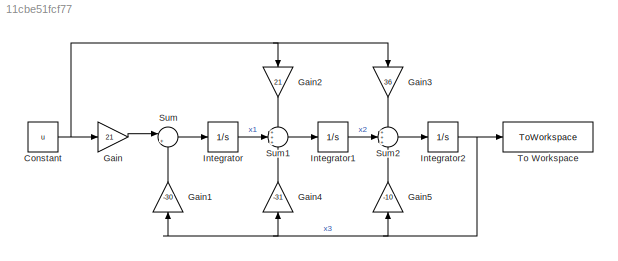
MODEL slx_11cbe51fcf77
KIND model
CONFIG AbsTol = auto
CONFIG EnableMultiTasking = off
CONFIG FixedStep = auto
CONFIG MaxStep = auto
CONFIG MinStep = auto
CONFIG RelTol = 1e-3
CONFIG SampleTimeConstraint = Unconstrained
CONFIG SolverName = VariableStepAuto
CONFIG StartTime = 0.0
CONFIG StopTime = 10.0
BLOCK [Constant] Constant
  SampleTime = 0.0001
  Value = u
BLOCK [Gain] Gain
  Gain = 21
BLOCK [Gain] Gain1
  Gain = -30
  NameLocation = right
BLOCK [Gain] Gain2
  Gain = 21
  NameLocation = left
BLOCK [Gain] Gain3
  Gain = 36
  NameLocation = left
BLOCK [Gain] Gain4
  Gain = -31
  NameLocation = right
BLOCK [Gain] Gain5
  Gain = -10
  NameLocation = right
BLOCK [Integrator] Integrator
BLOCK [Integrator] Integrator1
BLOCK [Integrator] Integrator2
BLOCK [Sum] Sum
  Inputs = |++
BLOCK [Sum] Sum1
  Inputs = +++
BLOCK [Sum] Sum2
  Inputs = +++
BLOCK [ToWorkspace] To Workspace
  FixptAsFi = on
  MaxDataPoints = inf
  SampleTime = -1
  SaveFormat = Timeseries
  VariableName = y
NET Constant:1 -> Gain2:1, Gain3:1, Gain:1
LINE Gain1:1 -> Sum:2
LINE Gain2:1 -> Sum1:1
LINE Gain3:1 -> Sum2:1
LINE Gain4:1 -> Sum1:3
LINE Gain5:1 -> Sum2:3
LINE Gain:1 -> Sum:1
LINE Integrator1:1 -> Sum2:2
NET Integrator2:1 -> Gain1:1, Gain4:1, Gain5:1, To Workspace:1
LINE Integrator:1 -> Sum1:2
LINE Sum1:1 -> Integrator1:1
LINE Sum2:1 -> Integrator2:1
LINE Sum:1 -> Integrator:1
note: NET lines group one-source signal fan-out (src -> all destinations, sorted); 1:1 wires keep LINE
